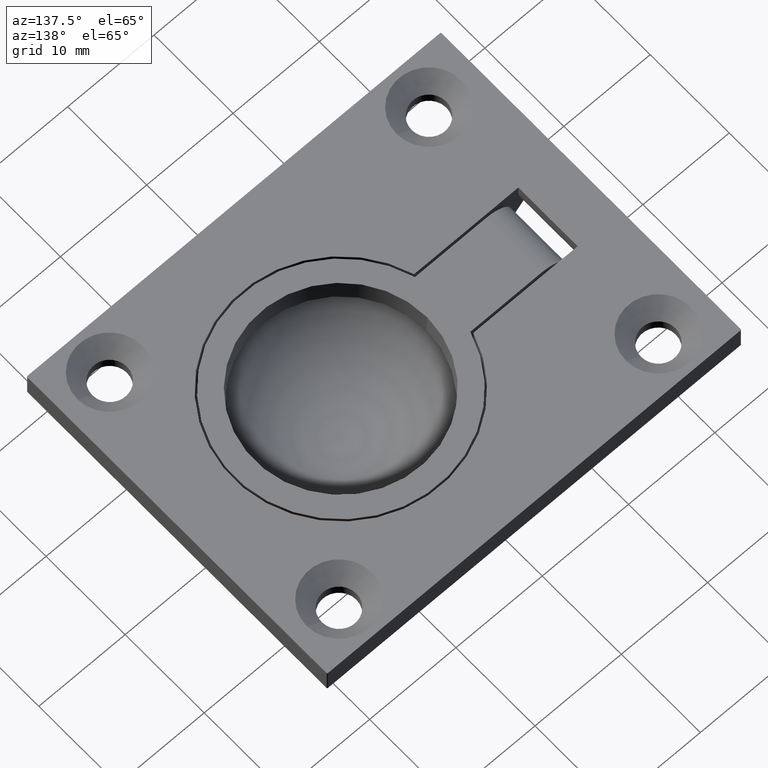
[diagram: clean part render]
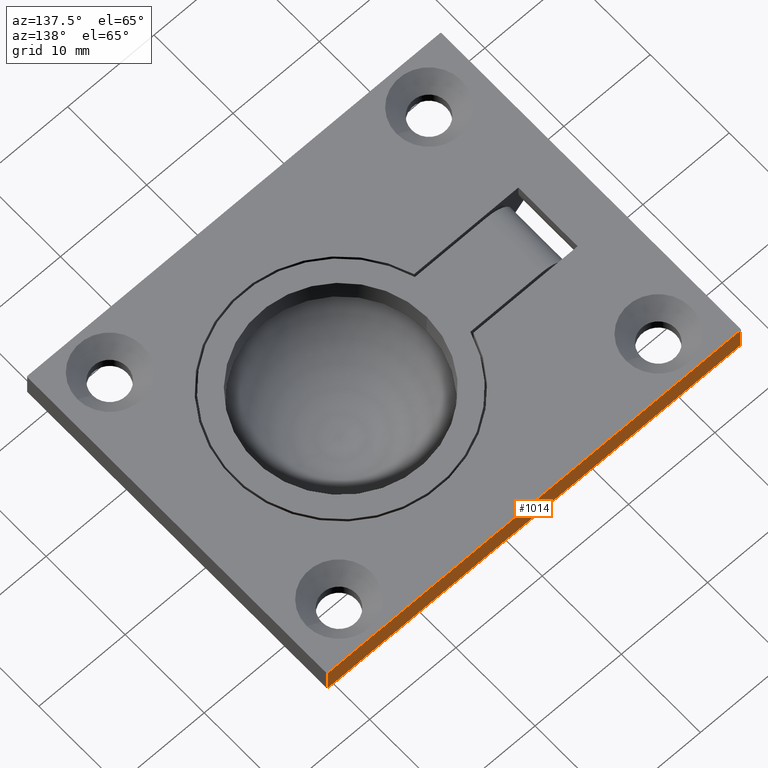
[diagram: same view with one face highlighted and labeled with its STEP entity id]
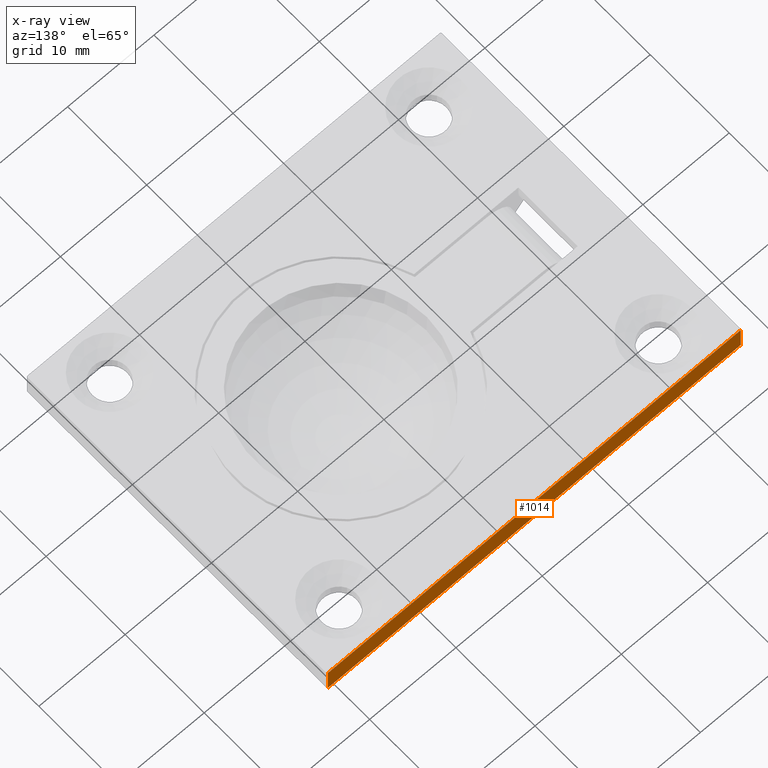
[diagram: x-ray of the same camera — body ghosted, the highlighted face saturated]
A machine part, auxiliary view. The second image highlights one B-rep face of the part: STEP entity #1014.
The next image is the same camera in x-ray: the body ghosted, the highlighted face saturated — about 0% of this face is hidden behind the body in this view.
In plain terms, the highlighted planar face has unit normal (-0, 1, 0).
Its self-contained STEP definition (entity closure, byte-faithful):
#82=PLANE('',#1095);
#105=FACE_OUTER_BOUND('',#174,.T.);
#174=EDGE_LOOP('',(#731,#732,#733,#734));
#269=LINE('',#1558,#337);
#271=LINE('',#1564,#339);
#278=LINE('',#1598,#346);
#279=LINE('',#1599,#347);
#337=VECTOR('',#1229,3.);
#339=VECTOR('',#1235,47.8);
#346=VECTOR('',#1264,47.8);
#347=VECTOR('',#1265,3.);
#467=VERTEX_POINT('',#1555);
#468=VERTEX_POINT('',#1557);
#470=VERTEX_POINT('',#1563);
#486=VERTEX_POINT('',#1597);
#567=EDGE_CURVE('',#467,#468,#269,.T.);
#570=EDGE_CURVE('',#470,#468,#271,.T.);
#587=EDGE_CURVE('',#486,#467,#278,.T.);
#588=EDGE_CURVE('',#470,#486,#279,.T.);
#731=ORIENTED_EDGE('',*,*,#567,.F.);
#732=ORIENTED_EDGE('',*,*,#587,.F.);
#733=ORIENTED_EDGE('',*,*,#588,.F.);
#734=ORIENTED_EDGE('',*,*,#570,.T.);
#1014=ADVANCED_FACE('',(#105),#82,.T.);
#1095=AXIS2_PLACEMENT_3D('',#1596,#1262,#1263);
#1229=DIRECTION('',(0.,0.,-1.));
#1235=DIRECTION('',(-1.,-9.25185853854297E-17,0.));
#1262=DIRECTION('center_axis',(-9.25185853854297E-17,1.,0.));
#1263=DIRECTION('ref_axis',(-1.,0.,0.));
#1264=DIRECTION('',(-1.,-9.25185853854297E-17,0.));
#1265=DIRECTION('',(0.,0.,1.));
#1555=CARTESIAN_POINT('',(-23.9,19.,3.));
#1557=CARTESIAN_POINT('',(-23.9,19.,0.));
#1558=CARTESIAN_POINT('',(-23.9,19.,0.));
#1563=CARTESIAN_POINT('',(23.9,19.,0.));
#1564=CARTESIAN_POINT('',(24.,19.,0.));
#1596=CARTESIAN_POINT('Origin',(24.,19.,0.));
#1597=CARTESIAN_POINT('',(23.9,19.,3.));
#1598=CARTESIAN_POINT('',(24.,19.,3.));
#1599=CARTESIAN_POINT('',(23.9,19.,0.));